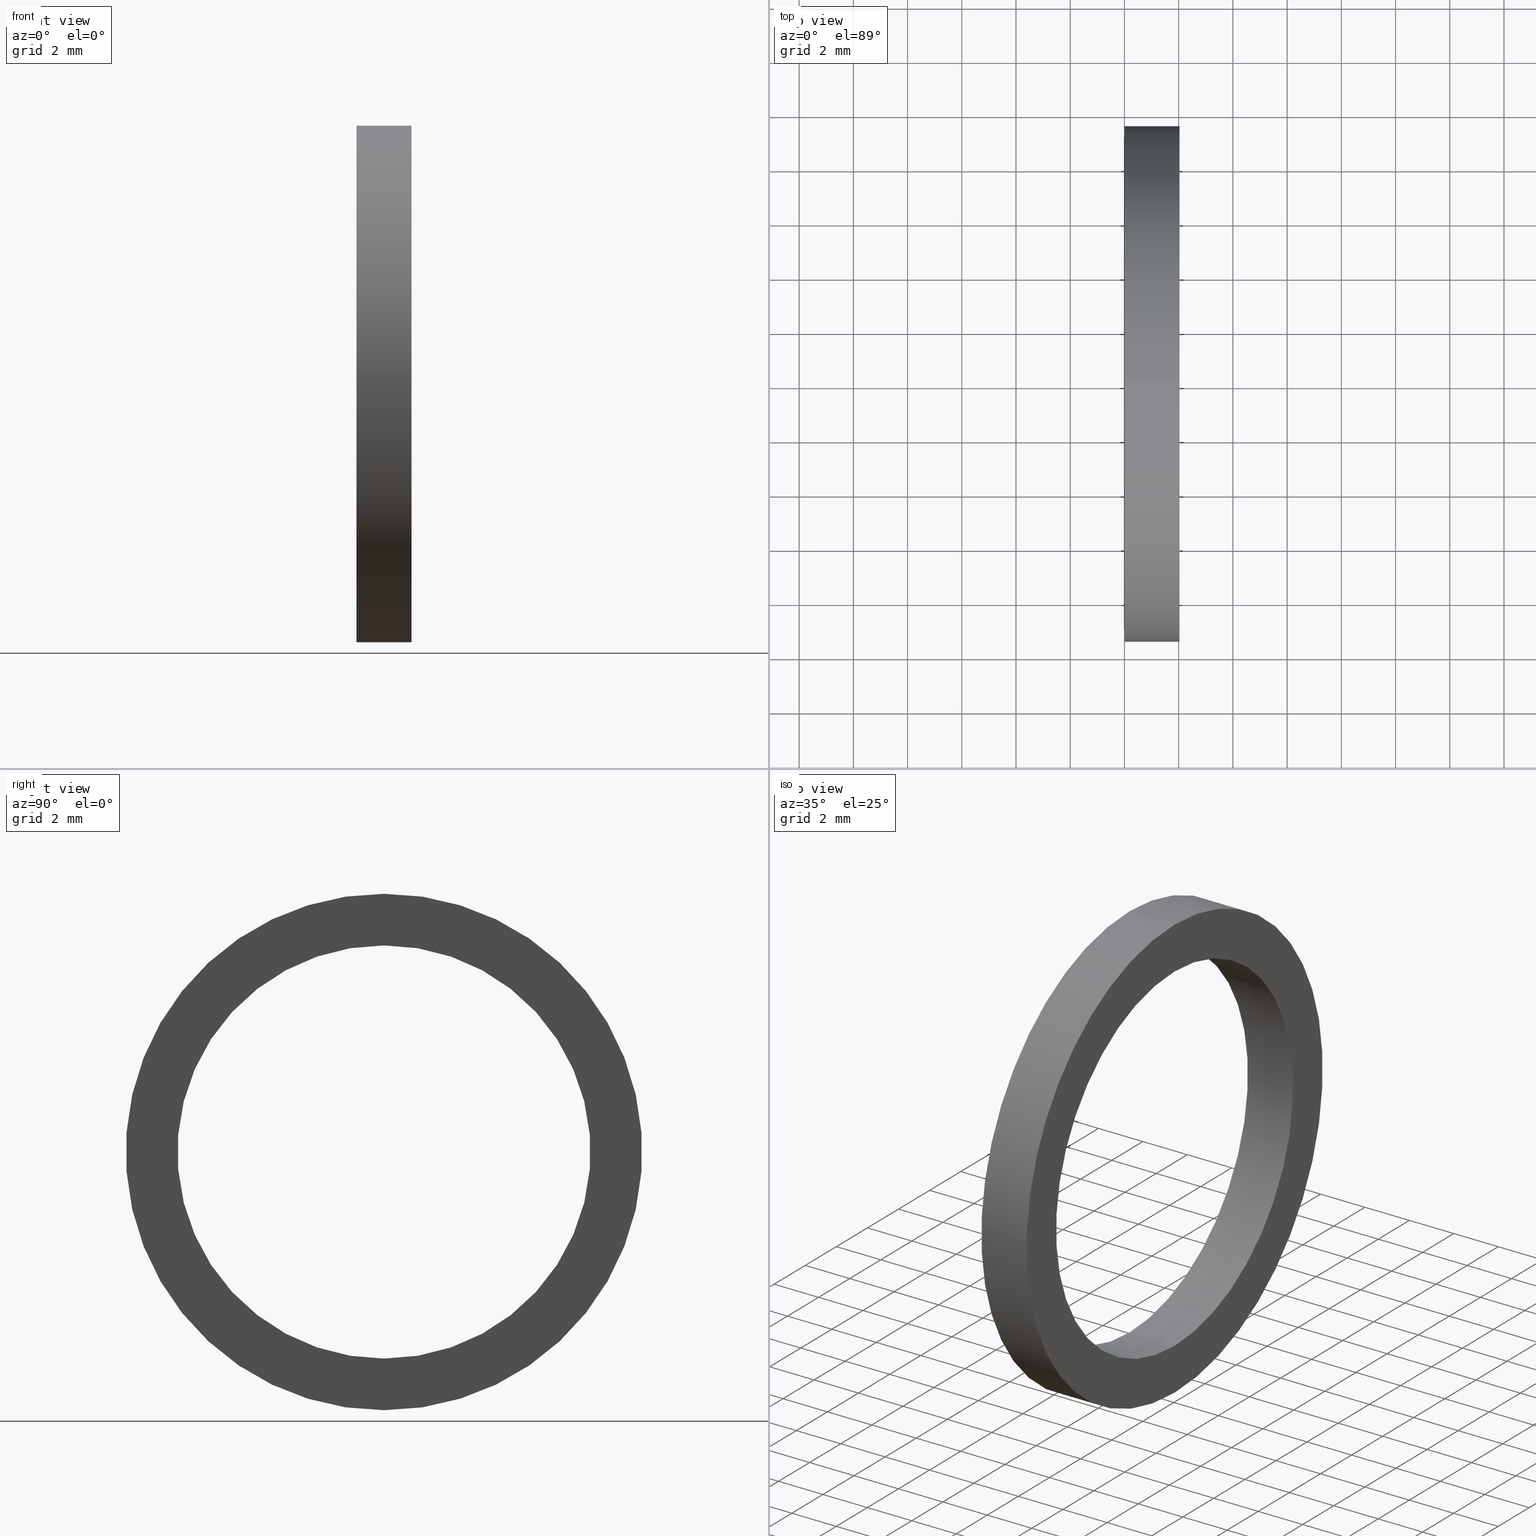
[diagram: canonical four-view strip — front | top / right | iso, engineering-drawing reading convention]
A machine part, canonical four-view strip (front | top / right | iso — engineering-drawing reading convention). The complete STEP part file that produces these views, byte-faithful:
ISO-10303-21;
HEADER;
FILE_DESCRIPTION (( 'STEP AP203' ),
    '1' );
FILE_NAME ('SR-09-NY.STEP',
    '2008-03-29T08:03:52',
    ( '' ),
    ( '' ),
    'SwSTEP 2.0',
    'SolidWorks 2007',
    '' );
FILE_SCHEMA (( 'CONFIG_CONTROL_DESIGN' ));
ENDSEC;

DATA;
#1 = AXIS2_PLACEMENT_3D ( 'NONE', #4, #3, #5 ) ;
#2 = PLANE ( 'NONE',  #1 ) ;
#3 = DIRECTION ( 'NONE',  ( -1.000000000000000000, 0.0000000000000000000, 0.0000000000000000000 ) ) ;
#4 = CARTESIAN_POINT ( 'NONE',  ( 1.132760877285698700E-017, -0.2999999999999999900, 0.0000000000000000000 ) ) ;
#5 = DIRECTION ( 'NONE',  ( 0.0000000000000000000, 0.0000000000000000000, 1.000000000000000000 ) ) ;
#6 = CARTESIAN_POINT ( 'NONE',  ( -1.721125226614714300, 0.0000000000000000000, 0.0000000000000000000 ) ) ;
#7 = CYLINDRICAL_SURFACE ( 'NONE', #46, 0.2999999999999999900 ) ;
#8 = FACE_OUTER_BOUND ( 'NONE', #13, .T. ) ;
#9 = ORIENTED_EDGE ( 'NONE', *, *, #80, .F. ) ;
#10 = ORIENTED_EDGE ( 'NONE', *, *, #50, .F. ) ;
#11 = ORIENTED_EDGE ( 'NONE', *, *, #56, .T. ) ;
#12 = CLOSED_SHELL ( 'NONE', ( #78, #61, #20, #17, #38, #15 ) ) ;
#13 = EDGE_LOOP ( 'NONE', ( #10, #9, #14, #11 ) ) ;
#14 = ORIENTED_EDGE ( 'NONE', *, *, #59, .T. ) ;
#15 = ADVANCED_FACE ( 'NONE', ( #8 ), #7, .F. ) ;
#16 = ORIENTED_EDGE ( 'NONE', *, *, #65, .F. ) ;
#17 = ADVANCED_FACE ( 'NONE', ( #47 ), #43, .T. ) ;
#18 = ORIENTED_EDGE ( 'NONE', *, *, #19, .F. ) ;
#19 = EDGE_CURVE ( 'NONE', #63, #42, #73, .T. ) ;
#20 = ADVANCED_FACE ( 'NONE', ( #69, #68 ), #2, .T. ) ;
#21 = EDGE_LOOP ( 'NONE', ( #22, #23 ) ) ;
#22 = ORIENTED_EDGE ( 'NONE', *, *, #36, .T. ) ;
#23 = ORIENTED_EDGE ( 'NONE', *, *, #67, .T. ) ;
#24 = ORIENTED_EDGE ( 'NONE', *, *, #51, .F. ) ;
#25 = VERTEX_POINT ( 'NONE', #172 ) ;
#26 = EDGE_CURVE ( 'NONE', #32, #63, #209, .T. ) ;
#27 = ORIENTED_EDGE ( 'NONE', *, *, #19, .T. ) ;
#28 = EDGE_LOOP ( 'NONE', ( #79, #81 ) ) ;
#29 = VERTEX_POINT ( 'NONE', #164 ) ;
#30 = ORIENTED_EDGE ( 'NONE', *, *, #39, .T. ) ;
#31 = EDGE_CURVE ( 'NONE', #63, #32, #85, .T. ) ;
#32 = VERTEX_POINT ( 'NONE', #86 ) ;
#33 = EDGE_LOOP ( 'NONE', ( #24, #49, #64, #58 ) ) ;
#34 = ORIENTED_EDGE ( 'NONE', *, *, #39, .F. ) ;
#35 = ORIENTED_EDGE ( 'NONE', *, *, #26, .T. ) ;
#36 = EDGE_CURVE ( 'NONE', #42, #40, #192, .T. ) ;
#37 = ORIENTED_EDGE ( 'NONE', *, *, #26, .F. ) ;
#38 = ADVANCED_FACE ( 'NONE', ( #193, #240 ), #239, .T. ) ;
#39 = EDGE_CURVE ( 'NONE', #32, #40, #198, .T. ) ;
#40 = VERTEX_POINT ( 'NONE', #238 ) ;
#41 = ORIENTED_EDGE ( 'NONE', *, *, #36, .F. ) ;
#42 = VERTEX_POINT ( 'NONE', #237 ) ;
#43 = CYLINDRICAL_SURFACE ( 'NONE', #77, 0.3750000000000000600 ) ;
#44 = DIRECTION ( 'NONE',  ( 0.0000000000000000000, 0.0000000000000000000, 1.000000000000000000 ) ) ;
#45 = DIRECTION ( 'NONE',  ( -1.000000000000000000, 0.0000000000000000000, 0.0000000000000000000 ) ) ;
#46 = AXIS2_PLACEMENT_3D ( 'NONE', #6, #45, #44 ) ;
#47 = FACE_OUTER_BOUND ( 'NONE', #57, .T. ) ;
#48 = EDGE_LOOP ( 'NONE', ( #62, #30, #41, #18 ) ) ;
#49 = ORIENTED_EDGE ( 'NONE', *, *, #50, .T. ) ;
#50 = EDGE_CURVE ( 'NONE', #25, #29, #202, .T. ) ;
#51 = EDGE_CURVE ( 'NONE', #25, #52, #91, .T. ) ;
#52 = VERTEX_POINT ( 'NONE', #177 ) ;
#53 = ORIENTED_EDGE ( 'NONE', *, *, #67, .F. ) ;
#54 = EDGE_LOOP ( 'NONE', ( #55, #16 ) ) ;
#55 = ORIENTED_EDGE ( 'NONE', *, *, #56, .F. ) ;
#56 = EDGE_CURVE ( 'NONE', #60, #29, #175, .T. ) ;
#57 = EDGE_LOOP ( 'NONE', ( #34, #35, #27, #53 ) ) ;
#58 = ORIENTED_EDGE ( 'NONE', *, *, #59, .F. ) ;
#59 = EDGE_CURVE ( 'NONE', #52, #60, #176, .T. ) ;
#60 = VERTEX_POINT ( 'NONE', #168 ) ;
#61 = ADVANCED_FACE ( 'NONE', ( #167 ), #165, .T. ) ;
#62 = ORIENTED_EDGE ( 'NONE', *, *, #31, .T. ) ;
#63 = VERTEX_POINT ( 'NONE', #249 ) ;
#64 = ORIENTED_EDGE ( 'NONE', *, *, #65, .T. ) ;
#65 = EDGE_CURVE ( 'NONE', #29, #60, #248, .T. ) ;
#66 = MANIFOLD_SOLID_BREP ( 'NONE', #12 ) ;
#67 = EDGE_CURVE ( 'NONE', #40, #42, #102, .T. ) ;
#68 = FACE_BOUND ( 'NONE', #54, .T. ) ;
#69 = FACE_OUTER_BOUND ( 'NONE', #21, .T. ) ;
#70 = DIRECTION ( 'NONE',  ( -1.000000000000000000, 0.0000000000000000000, 0.0000000000000000000 ) ) ;
#71 = VECTOR ( 'NONE', #70, 39.37007874015748100 ) ;
#72 = CARTESIAN_POINT ( 'NONE',  ( -1.721125226614714300, 0.0000000000000000000, 0.3750000000000000600 ) ) ;
#73 = LINE ( 'NONE', #72, #71 ) ;
#74 = DIRECTION ( 'NONE',  ( 0.0000000000000000000, 0.0000000000000000000, 1.000000000000000000 ) ) ;
#75 = DIRECTION ( 'NONE',  ( -1.000000000000000000, 0.0000000000000000000, 0.0000000000000000000 ) ) ;
#76 = CARTESIAN_POINT ( 'NONE',  ( -1.721125226614714300, 0.0000000000000000000, 0.0000000000000000000 ) ) ;
#77 = AXIS2_PLACEMENT_3D ( 'NONE', #76, #75, #74 ) ;
#78 = ADVANCED_FACE ( 'NONE', ( #97 ), #96, .F. ) ;
#79 = ORIENTED_EDGE ( 'NONE', *, *, #80, .T. ) ;
#80 = EDGE_CURVE ( 'NONE', #52, #25, #220, .T. ) ;
#81 = ORIENTED_EDGE ( 'NONE', *, *, #51, .T. ) ;
#82 = EDGE_LOOP ( 'NONE', ( #83, #37 ) ) ;
#83 = ORIENTED_EDGE ( 'NONE', *, *, #31, .F. ) ;
#84 = AXIS2_PLACEMENT_3D ( 'NONE', #173, #204, #203 ) ;
#85 = CIRCLE ( 'NONE', #84, 0.3750000000000000600 ) ;
#86 = CARTESIAN_POINT ( 'NONE',  ( 0.07999999999999996000, 4.592425496802575500E-017, -0.3750000000000000600 ) ) ;
#87 = DIRECTION ( 'NONE',  ( 0.0000000000000000000, 0.0000000000000000000, 1.000000000000000000 ) ) ;
#88 = DIRECTION ( 'NONE',  ( -1.000000000000000000, 0.0000000000000000000, 0.0000000000000000000 ) ) ;
#89 = CARTESIAN_POINT ( 'NONE',  ( 0.07999999999999996000, 0.0000000000000000000, 0.0000000000000000000 ) ) ;
#90 = AXIS2_PLACEMENT_3D ( 'NONE', #89, #88, #87 ) ;
#91 = CIRCLE ( 'NONE', #90, 0.2999999999999999900 ) ;
#92 = DIRECTION ( 'NONE',  ( 0.0000000000000000000, 0.0000000000000000000, 1.000000000000000000 ) ) ;
#93 = DIRECTION ( 'NONE',  ( -1.000000000000000000, 0.0000000000000000000, 0.0000000000000000000 ) ) ;
#94 = CARTESIAN_POINT ( 'NONE',  ( -1.721125226614714300, 0.0000000000000000000, 0.0000000000000000000 ) ) ;
#95 = AXIS2_PLACEMENT_3D ( 'NONE', #94, #93, #92 ) ;
#96 = CYLINDRICAL_SURFACE ( 'NONE', #95, 0.2999999999999999900 ) ;
#97 = FACE_OUTER_BOUND ( 'NONE', #33, .T. ) ;
#98 = DIRECTION ( 'NONE',  ( 0.0000000000000000000, 0.0000000000000000000, 1.000000000000000000 ) ) ;
#99 = DIRECTION ( 'NONE',  ( -1.000000000000000000, 0.0000000000000000000, 0.0000000000000000000 ) ) ;
#100 = CARTESIAN_POINT ( 'NONE',  ( 0.0000000000000000000, 0.0000000000000000000, 0.0000000000000000000 ) ) ;
#101 = AXIS2_PLACEMENT_3D ( 'NONE', #100, #99, #98 ) ;
#102 = CIRCLE ( 'NONE', #101, 0.3750000000000000600 ) ;
#103 = DIRECTION ( 'NONE',  ( 0.0000000000000000000, 0.0000000000000000000, 1.000000000000000000 ) ) ;
#104 = DIRECTION ( 'NONE',  ( -1.000000000000000000, 0.0000000000000000000, 0.0000000000000000000 ) ) ;
#105 = UNCERTAINTY_MEASURE_WITH_UNIT (LENGTH_MEASURE( 1.000000000000000100E-005 ), #148, 'distance_accuracy_value', 'NONE');
#106 =( NAMED_UNIT ( * ) SI_UNIT ( $, .STERADIAN. ) SOLID_ANGLE_UNIT ( ) );
#107 =( NAMED_UNIT ( * ) PLANE_ANGLE_UNIT ( ) SI_UNIT ( $, .RADIAN. ) );
#108 = CARTESIAN_POINT ( 'NONE',  ( 0.07999999999999996000, 0.0000000000000000000, 0.0000000000000000000 ) ) ;
#109 = APPROVAL_STATUS ( 'not_yet_approved' ) ;
#110 = PERSON_AND_ORGANIZATION ( #143, #142 ) ;
#111 = CC_DESIGN_DATE_AND_TIME_ASSIGNMENT ( #113, #112, ( #120 ) ) ;
#112 = DATE_TIME_ROLE ( 'classification_date' ) ;
#113 = DATE_AND_TIME ( #114, #115 ) ;
#114 = CALENDAR_DATE ( 2008, 29, 3 ) ;
#115 = LOCAL_TIME ( 13, 33, 52.00000000000000000, #116 ) ;
#116 = COORDINATED_UNIVERSAL_TIME_OFFSET ( 5, 30, .AHEAD. ) ;
#117 = CC_DESIGN_PERSON_AND_ORGANIZATION_ASSIGNMENT ( #119, #118, ( #120 ) ) ;
#118 = PERSON_AND_ORGANIZATION_ROLE ( 'classification_officer' ) ;
#119 = PERSON_AND_ORGANIZATION ( #143, #142 ) ;
#120 = SECURITY_CLASSIFICATION ( '', '', #121 ) ;
#121 = SECURITY_CLASSIFICATION_LEVEL ( 'unclassified' ) ;
#122 = CC_DESIGN_PERSON_AND_ORGANIZATION_ASSIGNMENT ( #124, #123, ( #226 ) ) ;
#123 = PERSON_AND_ORGANIZATION_ROLE ( 'design_supplier' ) ;
#124 = PERSON_AND_ORGANIZATION ( #143, #142 ) ;
#125 = APPROVAL_DATE_TIME ( #126, #132 ) ;
#126 = DATE_AND_TIME ( #127, #128 ) ;
#127 = CALENDAR_DATE ( 2008, 29, 3 ) ;
#128 = LOCAL_TIME ( 13, 33, 52.00000000000000000, #129 ) ;
#129 = COORDINATED_UNIVERSAL_TIME_OFFSET ( 5, 30, .AHEAD. ) ;
#130 = APPROVAL_PERSON_ORGANIZATION ( #134, #132, #131 ) ;
#131 = APPROVAL_ROLE ( '' ) ;
#132 = APPROVAL ( #133, 'UNSPECIFIED' ) ;
#133 = APPROVAL_STATUS ( 'not_yet_approved' ) ;
#134 = PERSON_AND_ORGANIZATION ( #143, #142 ) ;
#135 = PRODUCT_DEFINITION ( 'UNKNOWN', '', #226, #136 ) ;
#136 = DESIGN_CONTEXT ( 'detailed design', #138, 'design' ) ;
#137 = APPLICATION_PROTOCOL_DEFINITION ( 'international standard', 'config_control_design', 1994, #138 ) ;
#138 = APPLICATION_CONTEXT ( 'configuration controlled 3d designs of mechanical parts and assemblies' ) ;
#139 = CC_DESIGN_PERSON_AND_ORGANIZATION_ASSIGNMENT ( #141, #140, ( #144 ) ) ;
#140 = PERSON_AND_ORGANIZATION_ROLE ( 'design_owner' ) ;
#141 = PERSON_AND_ORGANIZATION ( #143, #142 ) ;
#142 = ORGANIZATION ( 'UNSPECIFIED', 'UNSPECIFIED', '' ) ;
#143 = PERSON ( 'UNSPECIFIED', 'UNSPECIFIED', 'UNSPECIFIED', ('UNSPECIFIED'), ('UNSPECIFIED'), ('UNSPECIFIED') ) ;
#144 = PRODUCT ( 'SR-09-NY', 'SR-09-NY', '', ( #145 ) ) ;
#145 = MECHANICAL_CONTEXT ( 'NONE', #147, 'mechanical' ) ;
#146 = APPLICATION_PROTOCOL_DEFINITION ( 'international standard', 'config_control_design', 1994, #147 ) ;
#147 = APPLICATION_CONTEXT ( 'configuration controlled 3d designs of mechanical parts and assemblies' ) ;
#148 =( CONVERSION_BASED_UNIT ( 'INCH', #149 ) LENGTH_UNIT ( ) NAMED_UNIT ( #150 ) );
#149 = LENGTH_MEASURE_WITH_UNIT ( LENGTH_MEASURE( 0.02539999999999999900 ), #151 );
#150 = DIMENSIONAL_EXPONENTS ( 1.000000000000000000, 0.0000000000000000000, 0.0000000000000000000, 0.0000000000000000000, 0.0000000000000000000, 0.0000000000000000000, 0.0000000000000000000 ) ;
#151 =( LENGTH_UNIT ( ) NAMED_UNIT ( * ) SI_UNIT ( $, .METRE. ) );
#152 = PRODUCT_DEFINITION_SHAPE ( 'NONE', 'NONE',  #135 ) ;
#153 = PRODUCT_RELATED_PRODUCT_CATEGORY ( 'detail', '', ( #144 ) ) ;
#154 = CC_DESIGN_SECURITY_CLASSIFICATION ( #120, ( #226 ) ) ;
#155 = CC_DESIGN_APPROVAL ( #163, ( #120 ) ) ;
#156 = APPROVAL_DATE_TIME ( #157, #163 ) ;
#157 = DATE_AND_TIME ( #158, #159 ) ;
#158 = CALENDAR_DATE ( 2008, 29, 3 ) ;
#159 = LOCAL_TIME ( 13, 33, 52.00000000000000000, #160 ) ;
#160 = COORDINATED_UNIVERSAL_TIME_OFFSET ( 5, 30, .AHEAD. ) ;
#161 = APPROVAL_PERSON_ORGANIZATION ( #110, #163, #162 ) ;
#162 = APPROVAL_ROLE ( '' ) ;
#163 = APPROVAL ( #109, 'UNSPECIFIED' ) ;
#164 = CARTESIAN_POINT ( 'NONE',  ( 0.0000000000000000000, 3.673940397442058900E-017, -0.2999999999999999900 ) ) ;
#165 = CYLINDRICAL_SURFACE ( 'NONE', #252, 0.3750000000000000600 ) ;
#166 = CARTESIAN_POINT ( 'NONE',  ( -1.721125226614714300, 0.0000000000000000000, 0.0000000000000000000 ) ) ;
#167 = FACE_OUTER_BOUND ( 'NONE', #48, .T. ) ;
#168 = CARTESIAN_POINT ( 'NONE',  ( 0.0000000000000000000, 0.0000000000000000000, 0.2999999999999999900 ) ) ;
#169 = DIRECTION ( 'NONE',  ( -1.000000000000000000, 0.0000000000000000000, 0.0000000000000000000 ) ) ;
#170 = DIRECTION ( 'NONE',  ( 1.000000000000000000, 0.0000000000000000000, 0.0000000000000000000 ) ) ;
#171 = AXIS2_PLACEMENT_3D ( 'NONE', #242, #221, #170 ) ;
#172 = CARTESIAN_POINT ( 'NONE',  ( 0.07999999999999996000, 3.673940397442058900E-017, -0.2999999999999999900 ) ) ;
#173 = CARTESIAN_POINT ( 'NONE',  ( 0.07999999999999996000, 0.0000000000000000000, 0.0000000000000000000 ) ) ;
#174 = AXIS2_PLACEMENT_3D ( 'NONE', #214, #213, #212 ) ;
#175 = CIRCLE ( 'NONE', #174, 0.2999999999999999900 ) ;
#176 = LINE ( 'NONE', #211, #210 ) ;
#177 = CARTESIAN_POINT ( 'NONE',  ( 0.07999999999999996000, 0.0000000000000000000, 0.2999999999999999900 ) ) ;
#178 = CC_DESIGN_PERSON_AND_ORGANIZATION_ASSIGNMENT ( #180, #179, ( #226 ) ) ;
#179 = PERSON_AND_ORGANIZATION_ROLE ( 'creator' ) ;
#180 = PERSON_AND_ORGANIZATION ( #143, #142 ) ;
#181 = CC_DESIGN_APPROVAL ( #189, ( #226 ) ) ;
#182 = APPROVAL_DATE_TIME ( #183, #189 ) ;
#183 = DATE_AND_TIME ( #184, #185 ) ;
#184 = CALENDAR_DATE ( 2008, 29, 3 ) ;
#185 = LOCAL_TIME ( 13, 33, 52.00000000000000000, #186 ) ;
#186 = COORDINATED_UNIVERSAL_TIME_OFFSET ( 5, 30, .AHEAD. ) ;
#187 = APPROVAL_PERSON_ORGANIZATION ( #191, #189, #188 ) ;
#188 = APPROVAL_ROLE ( '' ) ;
#189 = APPROVAL ( #190, 'UNSPECIFIED' ) ;
#190 = APPROVAL_STATUS ( 'not_yet_approved' ) ;
#191 = PERSON_AND_ORGANIZATION ( #143, #142 ) ;
#192 = CIRCLE ( 'NONE', #208, 0.3750000000000000600 ) ;
#193 = FACE_BOUND ( 'NONE', #28, .T. ) ;
#194 = DIRECTION ( 'NONE',  ( 0.0000000000000000000, 0.0000000000000000000, -1.000000000000000000 ) ) ;
#195 = DIRECTION ( 'NONE',  ( 1.000000000000000000, 0.0000000000000000000, 0.0000000000000000000 ) ) ;
#196 = CARTESIAN_POINT ( 'NONE',  ( 0.08000000000000000200, -0.2999999999999999900, 0.0000000000000000000 ) ) ;
#197 = AXIS2_PLACEMENT_3D ( 'NONE', #196, #195, #194 ) ;
#198 = LINE ( 'NONE', #225, #224 ) ;
#199 = DIRECTION ( 'NONE',  ( -1.000000000000000000, 0.0000000000000000000, 0.0000000000000000000 ) ) ;
#200 = VECTOR ( 'NONE', #199, 39.37007874015748100 ) ;
#201 = CARTESIAN_POINT ( 'NONE',  ( -1.721125226614714300, 3.673940397442058900E-017, -0.2999999999999999900 ) ) ;
#202 = LINE ( 'NONE', #201, #200 ) ;
#203 = DIRECTION ( 'NONE',  ( 0.0000000000000000000, 0.0000000000000000000, 1.000000000000000000 ) ) ;
#204 = DIRECTION ( 'NONE',  ( -1.000000000000000000, 0.0000000000000000000, 0.0000000000000000000 ) ) ;
#205 = DIRECTION ( 'NONE',  ( 0.0000000000000000000, 0.0000000000000000000, 1.000000000000000000 ) ) ;
#206 = DIRECTION ( 'NONE',  ( -1.000000000000000000, 0.0000000000000000000, 0.0000000000000000000 ) ) ;
#207 = CARTESIAN_POINT ( 'NONE',  ( 0.0000000000000000000, 0.0000000000000000000, 0.0000000000000000000 ) ) ;
#208 = AXIS2_PLACEMENT_3D ( 'NONE', #207, #206, #205 ) ;
#209 = CIRCLE ( 'NONE', #215, 0.3750000000000000600 ) ;
#210 = VECTOR ( 'NONE', #169, 39.37007874015748100 ) ;
#211 = CARTESIAN_POINT ( 'NONE',  ( -1.721125226614714300, 0.0000000000000000000, 0.2999999999999999900 ) ) ;
#212 = DIRECTION ( 'NONE',  ( 0.0000000000000000000, 0.0000000000000000000, 1.000000000000000000 ) ) ;
#213 = DIRECTION ( 'NONE',  ( -1.000000000000000000, 0.0000000000000000000, 0.0000000000000000000 ) ) ;
#214 = CARTESIAN_POINT ( 'NONE',  ( 0.0000000000000000000, 0.0000000000000000000, 0.0000000000000000000 ) ) ;
#215 = AXIS2_PLACEMENT_3D ( 'NONE', #108, #222, #241 ) ;
#216 = DIRECTION ( 'NONE',  ( 0.0000000000000000000, 0.0000000000000000000, 1.000000000000000000 ) ) ;
#217 = DIRECTION ( 'NONE',  ( -1.000000000000000000, 0.0000000000000000000, 0.0000000000000000000 ) ) ;
#218 = CARTESIAN_POINT ( 'NONE',  ( 0.07999999999999996000, 0.0000000000000000000, 0.0000000000000000000 ) ) ;
#219 = AXIS2_PLACEMENT_3D ( 'NONE', #218, #217, #216 ) ;
#220 = CIRCLE ( 'NONE', #219, 0.2999999999999999900 ) ;
#221 = DIRECTION ( 'NONE',  ( 0.0000000000000000000, 0.0000000000000000000, 1.000000000000000000 ) ) ;
#222 = DIRECTION ( 'NONE',  ( -1.000000000000000000, 0.0000000000000000000, 0.0000000000000000000 ) ) ;
#223 = DIRECTION ( 'NONE',  ( -1.000000000000000000, 0.0000000000000000000, 0.0000000000000000000 ) ) ;
#224 = VECTOR ( 'NONE', #223, 39.37007874015748100 ) ;
#225 = CARTESIAN_POINT ( 'NONE',  ( -1.721125226614714300, 4.592425496802575500E-017, -0.3750000000000000600 ) ) ;
#226 = PRODUCT_DEFINITION_FORMATION_WITH_SPECIFIED_SOURCE ( 'ANY', '', #144, .NOT_KNOWN. ) ;
#227 = CC_DESIGN_DATE_AND_TIME_ASSIGNMENT ( #229, #228, ( #135 ) ) ;
#228 = DATE_TIME_ROLE ( 'creation_date' ) ;
#229 = DATE_AND_TIME ( #230, #231 ) ;
#230 = CALENDAR_DATE ( 2008, 29, 3 ) ;
#231 = LOCAL_TIME ( 13, 33, 52.00000000000000000, #232 ) ;
#232 = COORDINATED_UNIVERSAL_TIME_OFFSET ( 5, 30, .AHEAD. ) ;
#233 = CC_DESIGN_PERSON_AND_ORGANIZATION_ASSIGNMENT ( #235, #234, ( #135 ) ) ;
#234 = PERSON_AND_ORGANIZATION_ROLE ( 'creator' ) ;
#235 = PERSON_AND_ORGANIZATION ( #143, #142 ) ;
#236 = CC_DESIGN_APPROVAL ( #132, ( #135 ) ) ;
#237 = CARTESIAN_POINT ( 'NONE',  ( 0.0000000000000000000, 0.0000000000000000000, 0.3750000000000000600 ) ) ;
#238 = CARTESIAN_POINT ( 'NONE',  ( 0.0000000000000000000, 4.592425496802575500E-017, -0.3750000000000000600 ) ) ;
#239 = PLANE ( 'NONE',  #197 ) ;
#240 = FACE_OUTER_BOUND ( 'NONE', #82, .T. ) ;
#241 = DIRECTION ( 'NONE',  ( 0.0000000000000000000, 0.0000000000000000000, 1.000000000000000000 ) ) ;
#242 = CARTESIAN_POINT ( 'NONE',  ( 0.0000000000000000000, 0.0000000000000000000, 0.0000000000000000000 ) ) ;
#243 = SHAPE_DEFINITION_REPRESENTATION ( #152, #244 ) ;
#244 = ADVANCED_BREP_SHAPE_REPRESENTATION ( 'SR-09-NY', ( #66, #171 ), #245 ) ;
#245 =( GEOMETRIC_REPRESENTATION_CONTEXT ( 3 ) GLOBAL_UNCERTAINTY_ASSIGNED_CONTEXT ( ( #105 ) ) GLOBAL_UNIT_ASSIGNED_CONTEXT ( ( #148, #107, #106 ) ) REPRESENTATION_CONTEXT ( 'NONE', 'WORKASPACE' ) );
#246 = CARTESIAN_POINT ( 'NONE',  ( 0.0000000000000000000, 0.0000000000000000000, 0.0000000000000000000 ) ) ;
#247 = AXIS2_PLACEMENT_3D ( 'NONE', #246, #104, #103 ) ;
#248 = CIRCLE ( 'NONE', #247, 0.2999999999999999900 ) ;
#249 = CARTESIAN_POINT ( 'NONE',  ( 0.07999999999999996000, 0.0000000000000000000, 0.3750000000000000600 ) ) ;
#250 = DIRECTION ( 'NONE',  ( 0.0000000000000000000, 0.0000000000000000000, 1.000000000000000000 ) ) ;
#251 = DIRECTION ( 'NONE',  ( -1.000000000000000000, 0.0000000000000000000, 0.0000000000000000000 ) ) ;
#252 = AXIS2_PLACEMENT_3D ( 'NONE', #166, #251, #250 ) ;
ENDSEC;
END-ISO-10303-21;
